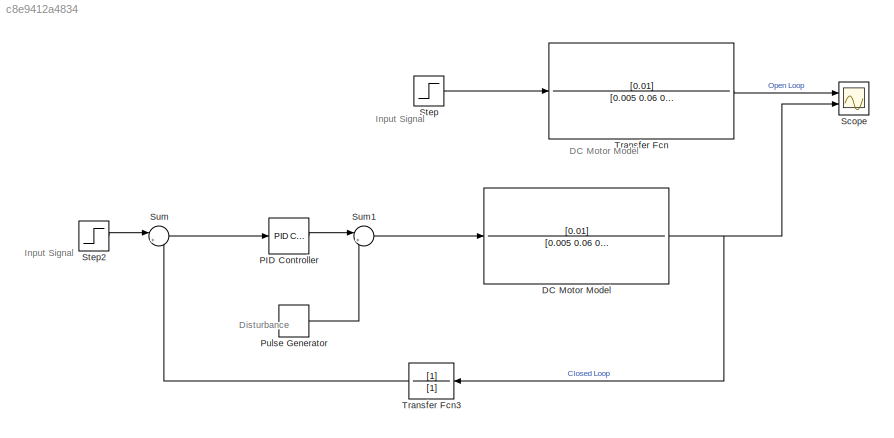
MODEL slx_c8e9412a4834
KIND model
CONFIG AbsTol = auto
CONFIG EnableMultiTasking = off
CONFIG FixedStep = auto
CONFIG MaxStep = auto
CONFIG MinStep = auto
CONFIG RelTol = 1e-3
CONFIG SampleTimeConstraint = Unconstrained
CONFIG SolverName = VariableStepAuto
CONFIG StartTime = 0.0
CONFIG StopTime = 10.0
BLOCK [TransferFcn] DC Motor Model
  Denominator = [0.005 0.06 0.1001]
  Numerator = [0.01]
BLOCK [Reference] PID Controller  REF=pid_lib/PID Controller
  Ports = [1, 1]
  SourceBlock = pid_lib/PID Controller
  SourceProductBaseCode = SL
  SourceType = PID 1dof
BLOCK [DiscretePulseGenerator] Pulse Generator
  Amplitude = 0
  Period = 10
  Ports = [0, 1]
  PulseType = Time based
  PulseWidth = 5
BLOCK [Scope] Scope
  Floating = off
  NumInputPorts = 2
  Ports = [2]
  ScopeSpecificationString = Simulink.scopes.TimeScopeBlockCfg('CurrentConfiguration', extmgr.ConfigurationSet(extmgr.Configuration('Core','General UI',true),extmgr.Configuration('Core','Source UI',true),extmgr.Configuration('Sources','WiredSimulink',true),extmgr.Configuration('Visuals','Time Domain',true,'SerializedDisplays',{struct('MinYLimReal','-0.01249','MaxYLimReal','0.11239','YLabelReal','','MinYLimMag','0.00000','MaxY...<+1370ch>
BLOCK [Step] Step
  SampleTime = 0
  Time = 0
BLOCK [Step] Step2
  SampleTime = 0
  Time = 0
  ZeroCross = off
BLOCK [Sum] Sum
  Inputs = |+-
  Ports = [2, 1]
BLOCK [Sum] Sum1
  Inputs = |++
  Ports = [2, 1]
BLOCK [TransferFcn] Transfer Fcn
  Denominator = [0.005 0.06 0.1001]
  Numerator = [0.01]
BLOCK [TransferFcn] Transfer Fcn3
  Denominator = [1]
  NameLocation = top
ANNOTATION (root): DC Motor Model
ANNOTATION (root): Disturbance
ANNOTATION (root): Input Signal
NET DC Motor Model:1 -> Scope:2, Transfer Fcn3:1
LINE PID Controller:1 -> Sum1:1
LINE Pulse Generator:1 -> Sum1:2
LINE Step2:1 -> Sum:1
LINE Step:1 -> Transfer Fcn:1
LINE Sum1:1 -> DC Motor Model:1
LINE Sum:1 -> PID Controller:1
LINE Transfer Fcn3:1 -> Sum:2
LINE Transfer Fcn:1 -> Scope:1
note: NET lines group one-source signal fan-out (src -> all destinations, sorted); 1:1 wires keep LINE
